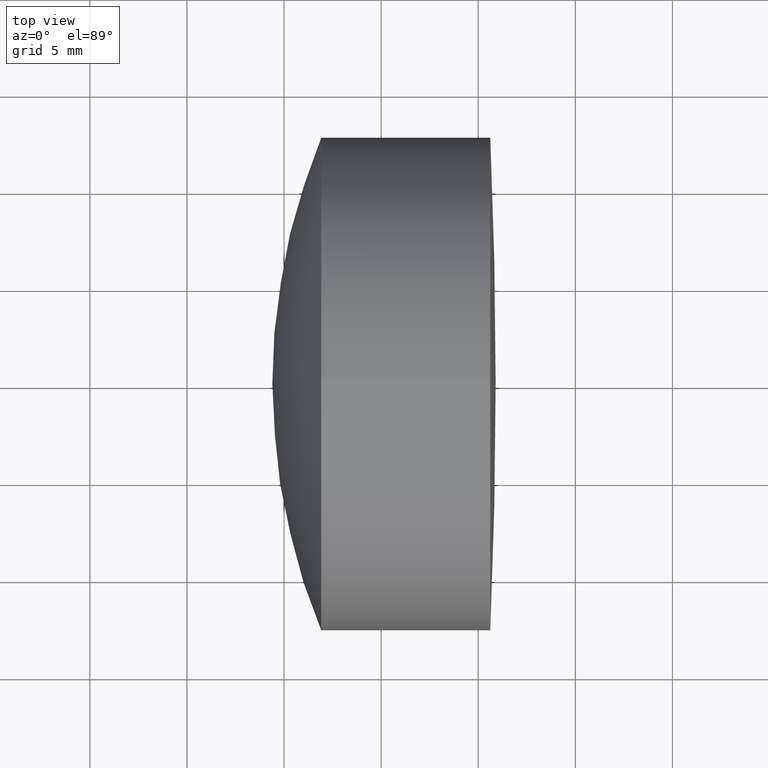
[diagram: clean part render]
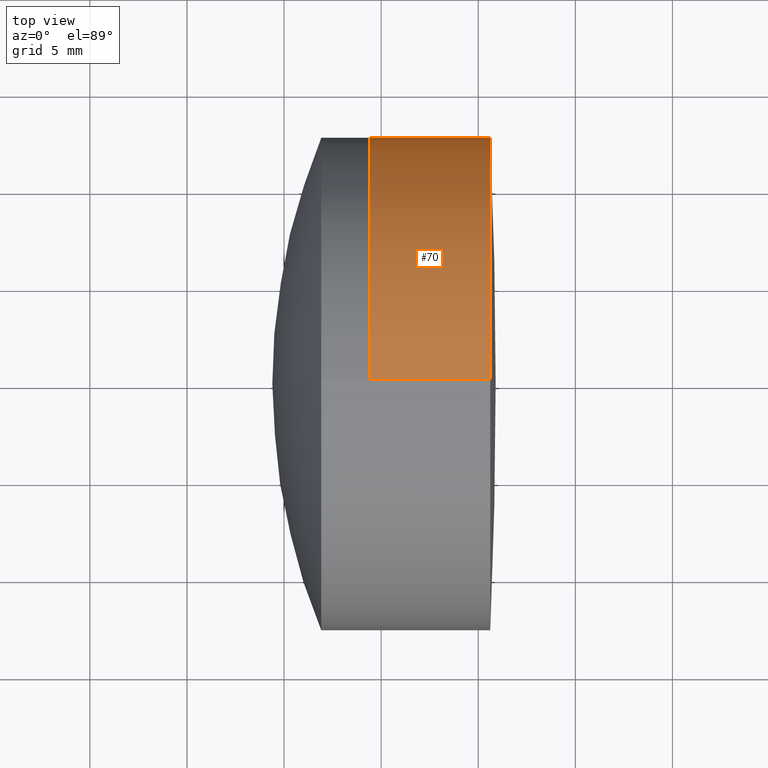
[diagram: same view with one face highlighted and labeled with its STEP entity id]
A machine part, top view. The second image highlights one B-rep face of the part: STEP entity #70.
In plain terms, the highlighted cylindrical surface (partial cylindrical patch) has radius 12.7 mm, axis along (-1, -0, -0).
Its self-contained STEP definition (entity closure, byte-faithful):
#8 = LINE ( 'NONE', #189, #239 ) ;
#9 = VERTEX_POINT ( 'NONE', #72 ) ;
#29 = VERTEX_POINT ( 'NONE', #283 ) ;
#42 = EDGE_CURVE ( 'NONE', #29, #97, #157, .T. ) ;
#69 = CYLINDRICAL_SURFACE ( 'NONE', #101, 12.70000000000002100 ) ;
#70 = ADVANCED_FACE ( 'NONE', ( #254 ), #69, .T. ) ;
#72 = CARTESIAN_POINT ( 'NONE',  ( 235.6186784746321600, 1.555301434917140800E-015, -12.70000000000001700 ) ) ;
#86 = CARTESIAN_POINT ( 'NONE',  ( 229.4261485882427700, 0.0000000000000000000, 12.70000000000002200 ) ) ;
#97 = VERTEX_POINT ( 'NONE', #86 ) ;
#101 = AXIS2_PLACEMENT_3D ( 'NONE', #191, #305, #166 ) ;
#104 = ORIENTED_EDGE ( 'NONE', *, *, #293, .T. ) ;
#114 = EDGE_CURVE ( 'NONE', #9, #281, #8, .T. ) ;
#139 = CARTESIAN_POINT ( 'NONE',  ( 229.4261485882427700, 0.0000000000000000000, 0.0000000000000000000 ) ) ;
#146 = EDGE_CURVE ( 'NONE', #97, #281, #253, .T. ) ;
#150 = AXIS2_PLACEMENT_3D ( 'NONE', #139, #199, #195 ) ;
#157 = LINE ( 'NONE', #282, #241 ) ;
#166 = DIRECTION ( 'NONE',  ( 0.0000000000000000000, 0.0000000000000000000, 1.000000000000000000 ) ) ;
#184 = CARTESIAN_POINT ( 'NONE',  ( 235.6186784746321600, 0.0000000000000000000, 0.0000000000000000000 ) ) ;
#189 = CARTESIAN_POINT ( 'NONE',  ( -0.5519199926577972300, 1.555301434917141000E-015, -12.70000000000002100 ) ) ;
#191 = CARTESIAN_POINT ( 'NONE',  ( -0.5519199926577972300, 0.0000000000000000000, 0.0000000000000000000 ) ) ;
#195 = DIRECTION ( 'NONE',  ( 0.0000000000000000000, 0.0000000000000000000, 1.000000000000000000 ) ) ;
#199 = DIRECTION ( 'NONE',  ( -1.000000000000000000, -0.0000000000000000000, -0.0000000000000000000 ) ) ;
#203 = DIRECTION ( 'NONE',  ( -1.000000000000000000, -0.0000000000000000000, -0.0000000000000000000 ) ) ;
#226 = ORIENTED_EDGE ( 'NONE', *, *, #114, .T. ) ;
#229 = AXIS2_PLACEMENT_3D ( 'NONE', #184, #343, #311 ) ;
#239 = VECTOR ( 'NONE', #203, 1000.000000000000000 ) ;
#241 = VECTOR ( 'NONE', #340, 1000.000000000000000 ) ;
#248 = CARTESIAN_POINT ( 'NONE',  ( 229.4261485882427700, 1.555301434917141000E-015, -12.70000000000002600 ) ) ;
#253 = CIRCLE ( 'NONE', #150, 12.70000000000002400 ) ;
#254 = FACE_OUTER_BOUND ( 'NONE', #312, .T. ) ;
#274 = ORIENTED_EDGE ( 'NONE', *, *, #42, .F. ) ;
#281 = VERTEX_POINT ( 'NONE', #248 ) ;
#282 = CARTESIAN_POINT ( 'NONE',  ( -0.5519199926577972300, 0.0000000000000000000, 12.70000000000002100 ) ) ;
#283 = CARTESIAN_POINT ( 'NONE',  ( 235.6186784746321600, 0.0000000000000000000, 12.70000000000001700 ) ) ;
#293 = EDGE_CURVE ( 'NONE', #29, #9, #315, .T. ) ;
#298 = ORIENTED_EDGE ( 'NONE', *, *, #146, .F. ) ;
#305 = DIRECTION ( 'NONE',  ( -1.000000000000000000, -0.0000000000000000000, -0.0000000000000000000 ) ) ;
#311 = DIRECTION ( 'NONE',  ( 0.0000000000000000000, 0.0000000000000000000, 1.000000000000000000 ) ) ;
#312 = EDGE_LOOP ( 'NONE', ( #104, #226, #298, #274 ) ) ;
#315 = CIRCLE ( 'NONE', #229, 12.70000000000001700 ) ;
#340 = DIRECTION ( 'NONE',  ( -1.000000000000000000, -0.0000000000000000000, -0.0000000000000000000 ) ) ;
#343 = DIRECTION ( 'NONE',  ( -1.000000000000000000, -0.0000000000000000000, -0.0000000000000000000 ) ) ;